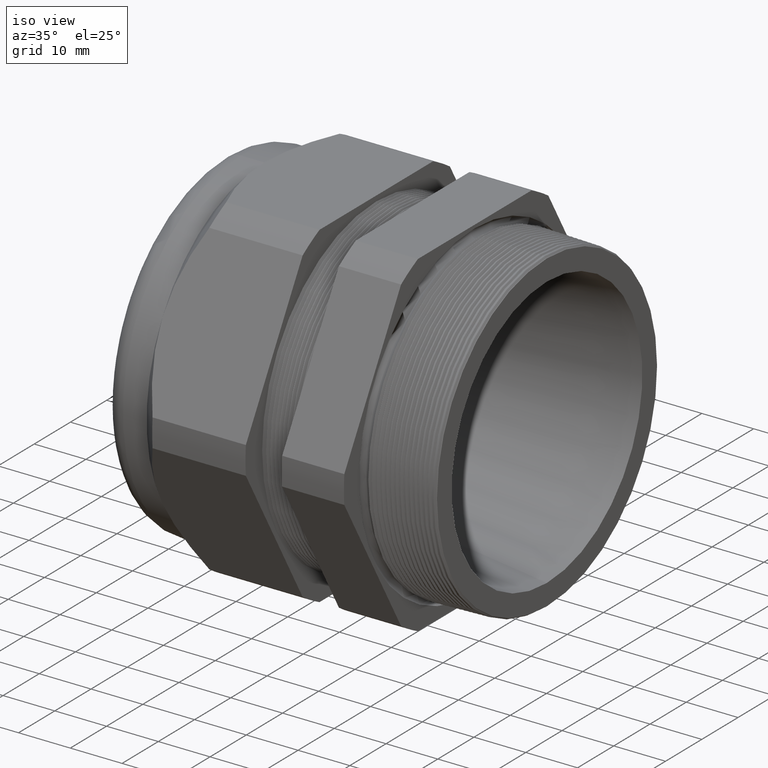
[diagram: clean part render]
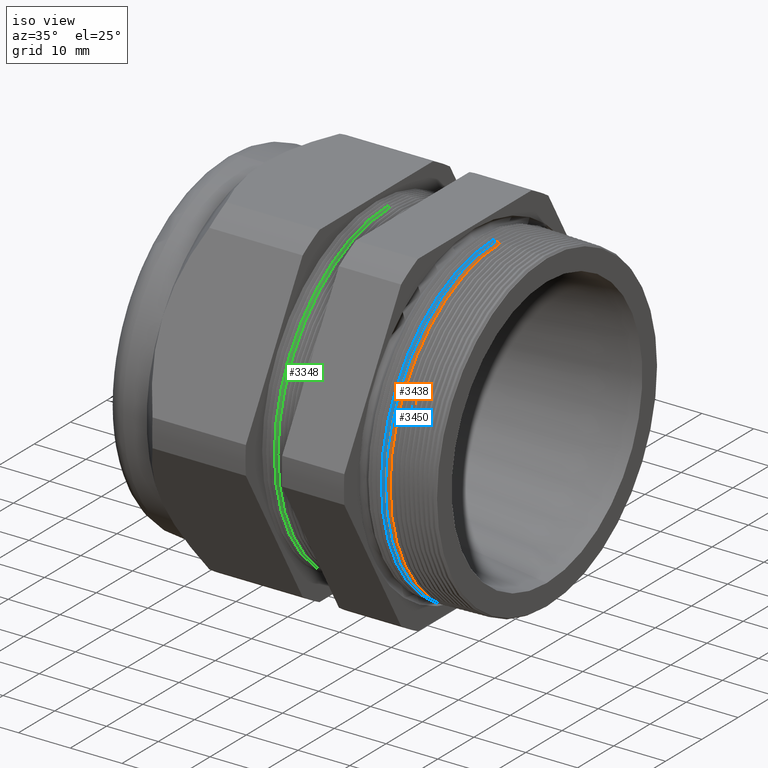
[diagram: same view with three faces highlighted in distinct colors, each labeled with its STEP entity id]
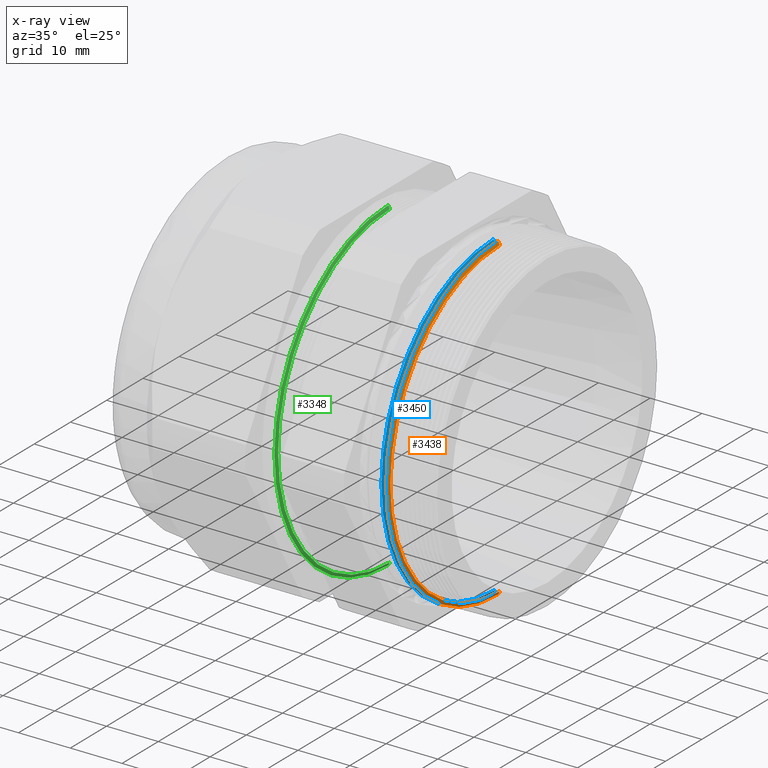
[diagram: x-ray of the same camera — body ghosted, the three highlighted faces saturated]
A machine part, iso view with three faces highlighted in distinct colors.
The next image is the same camera in x-ray (body ghosted, the three faces saturated) — at least one of them is partly hidden behind the body in this view.
Their STEP definitions:

[orange] entity #3438 — the highlighted conical surface has half-angle 61.5 deg.
#591 = CARTESIAN_POINT ( 'NONE',  ( -0.1184707356790753000, 1.473061546559352300E-016, -1.189948790814587800 ) ) ;
#661 = CARTESIAN_POINT ( 'NONE',  ( -0.1184707356790753000, 0.0000000000000000000, 1.189948790814587800 ) ) ;
#666 = CARTESIAN_POINT ( 'NONE',  ( -0.1324760000967738200, 0.0000000000000000000, 1.215743279070304900 ) ) ;
#667 = CARTESIAN_POINT ( 'NONE',  ( -0.1324760000967738200, 1.488937984899661700E-016, -1.215743279070304900 ) ) ;
#668 = DIRECTION ( 'NONE',  ( -0.4771587602596173400, 1.076240564057388800E-016, -0.8788171126619606100 ) ) ;
#669 = VECTOR ( 'NONE', #668, 39.37007874015748900 ) ;
#670 = CARTESIAN_POINT ( 'NONE',  ( -0.1349999999999999500, 1.494549044582627900E-016, -1.220391908608417600 ) ) ;
#671 = LINE ( 'NONE', #670, #669 ) ;
#693 = DIRECTION ( 'NONE',  ( -0.4771587602596173400, 0.0000000000000000000, 0.8788171126619606100 ) ) ;
#694 = VECTOR ( 'NONE', #693, 39.37007874015748900 ) ;
#695 = CARTESIAN_POINT ( 'NONE',  ( -0.1349999999999999500, 0.0000000000000000000, 1.220391908608417600 ) ) ;
#696 = LINE ( 'NONE', #695, #694 ) ;
#1014 = DIRECTION ( 'NONE',  ( 0.0000000000000000000, 0.0000000000000000000, -1.000000000000000000 ) ) ;
#1015 = DIRECTION ( 'NONE',  ( 1.000000000000000000, 0.0000000000000000000, 0.0000000000000000000 ) ) ;
#1016 = AXIS2_PLACEMENT_3D ( 'NONE', #1021, #1015, #1014 ) ;
#1017 = CIRCLE ( 'NONE', #1016, 1.189948790814587800 ) ;
#1018 = DIRECTION ( 'NONE',  ( 0.0000000000000000000, 0.0000000000000000000, 1.000000000000000000 ) ) ;
#1019 = DIRECTION ( 'NONE',  ( -1.000000000000000000, 0.0000000000000000000, 0.0000000000000000000 ) ) ;
#1020 = AXIS2_PLACEMENT_3D ( 'NONE', #1028, #1019, #1018 ) ;
#1021 = CARTESIAN_POINT ( 'NONE',  ( -0.1184707356790753000, 0.0000000000000000000, 0.0000000000000000000 ) ) ;
#1022 = CONICAL_SURFACE ( 'NONE', #1020, 1.220391908608417600, 1.073377489976502500 ) ;
#1023 = FACE_OUTER_BOUND ( 'NONE', #3439, .T. ) ;
#1028 = CARTESIAN_POINT ( 'NONE',  ( -0.1349999999999999500, 0.0000000000000000000, 0.0000000000000000000 ) ) ;
#2427 = EDGE_CURVE ( 'NONE', #3150, #3148, #4857, .T. ) ;
#3121 = VERTEX_POINT ( 'NONE', #591 ) ;
#3147 = EDGE_CURVE ( 'NONE', #3121, #3148, #671, .T. ) ;
#3148 = VERTEX_POINT ( 'NONE', #667 ) ;
#3150 = VERTEX_POINT ( 'NONE', #666 ) ;
#3154 = VERTEX_POINT ( 'NONE', #661 ) ;
#3178 = EDGE_CURVE ( 'NONE', #3154, #3150, #696, .T. ) ;
#3438 = ADVANCED_FACE ( 'NONE', ( #1023 ), #1022, .T. ) ;
#3439 = EDGE_LOOP ( 'NONE', ( #3440, #3441, #3443, #3495 ) ) ;
#3440 = ORIENTED_EDGE ( 'NONE', *, *, #3147, .F. ) ;
#3441 = ORIENTED_EDGE ( 'NONE', *, *, #3442, .F. ) ;
#3442 = EDGE_CURVE ( 'NONE', #3154, #3121, #1017, .T. ) ;
#3443 = ORIENTED_EDGE ( 'NONE', *, *, #3178, .T. ) ;
#3495 = ORIENTED_EDGE ( 'NONE', *, *, #2427, .T. ) ;
#4854 = DIRECTION ( 'NONE',  ( 0.0000000000000000000, 0.0000000000000000000, 1.000000000000000000 ) ) ;
#4855 = DIRECTION ( 'NONE',  ( 1.000000000000000000, 0.0000000000000000000, 0.0000000000000000000 ) ) ;
#4856 = AXIS2_PLACEMENT_3D ( 'NONE', #4863, #4855, #4854 ) ;
#4857 = CIRCLE ( 'NONE', #4856, 1.215743279070304900 ) ;
#4863 = CARTESIAN_POINT ( 'NONE',  ( -0.1324760000967738200, 0.0000000000000000000, 0.0000000000000000000 ) ) ;

[blue] entity #3450 — the highlighted conical surface has half-angle 61.5 deg.
#490 = CONICAL_SURFACE ( 'NONE', #1006, 1.220391908608417600, 1.073377489976502500 ) ;
#739 = CARTESIAN_POINT ( 'NONE',  ( -0.1534707356790753200, 0.0000000000000000000, 1.189948790814587800 ) ) ;
#740 = CARTESIAN_POINT ( 'NONE',  ( -0.1534707356790753200, 1.473630839487779600E-016, -1.189948790814587800 ) ) ;
#1006 = AXIS2_PLACEMENT_3D ( 'NONE', #5667, #5666, #4409 ) ;
#1011 = FACE_OUTER_BOUND ( 'NONE', #3451, .T. ) ;
#1064 = DIRECTION ( 'NONE',  ( 0.0000000000000000000, 0.0000000000000000000, -1.000000000000000000 ) ) ;
#1065 = DIRECTION ( 'NONE',  ( 1.000000000000000000, 0.0000000000000000000, 0.0000000000000000000 ) ) ;
#1066 = CARTESIAN_POINT ( 'NONE',  ( -0.1534707356790753200, 0.0000000000000000000, 0.0000000000000000000 ) ) ;
#1067 = AXIS2_PLACEMENT_3D ( 'NONE', #1066, #1065, #1064 ) ;
#1068 = CIRCLE ( 'NONE', #1067, 1.189948790814587800 ) ;
#1166 = CARTESIAN_POINT ( 'NONE',  ( -0.1699999999999999600, 0.0000000000000000000, 1.220391908608417600 ) ) ;
#1167 = LINE ( 'NONE', #1166, #1227 ) ;
#1212 = CARTESIAN_POINT ( 'NONE',  ( -0.1679808000774192500, 1.490059613472292900E-016, -1.216673004977927700 ) ) ;
#1213 = DIRECTION ( 'NONE',  ( -0.4771587602596173400, 1.076240564057388800E-016, -0.8788171126619606100 ) ) ;
#1214 = VECTOR ( 'NONE', #1213, 39.37007874015748900 ) ;
#1215 = CARTESIAN_POINT ( 'NONE',  ( -0.1699999999999999600, 1.494549044582627900E-016, -1.220391908608417600 ) ) ;
#1216 = LINE ( 'NONE', #1215, #1214 ) ;
#1226 = DIRECTION ( 'NONE',  ( -0.4771587602596173400, 0.0000000000000000000, 0.8788171126619606100 ) ) ;
#1227 = VECTOR ( 'NONE', #1226, 39.37007874015748900 ) ;
#1826 = VERTEX_POINT ( 'NONE', #3783 ) ;
#2476 = EDGE_CURVE ( 'NONE', #1826, #3579, #4957, .T. ) ;
#3187 = VERTEX_POINT ( 'NONE', #740 ) ;
#3189 = VERTEX_POINT ( 'NONE', #739 ) ;
#3450 = ADVANCED_FACE ( 'NONE', ( #1011 ), #490, .T. ) ;
#3451 = EDGE_LOOP ( 'NONE', ( #3452, #3453, #3455, #3456 ) ) ;
#3452 = ORIENTED_EDGE ( 'NONE', *, *, #3578, .F. ) ;
#3453 = ORIENTED_EDGE ( 'NONE', *, *, #3454, .F. ) ;
#3454 = EDGE_CURVE ( 'NONE', #3189, #3187, #1068, .T. ) ;
#3455 = ORIENTED_EDGE ( 'NONE', *, *, #3573, .T. ) ;
#3456 = ORIENTED_EDGE ( 'NONE', *, *, #2476, .T. ) ;
#3573 = EDGE_CURVE ( 'NONE', #3189, #1826, #1167, .T. ) ;
#3578 = EDGE_CURVE ( 'NONE', #3187, #3579, #1216, .T. ) ;
#3579 = VERTEX_POINT ( 'NONE', #1212 ) ;
#3783 = CARTESIAN_POINT ( 'NONE',  ( -0.1679808000774192500, 0.0000000000000000000, 1.216673004977927700 ) ) ;
#4409 = DIRECTION ( 'NONE',  ( 0.0000000000000000000, 0.0000000000000000000, 1.000000000000000000 ) ) ;
#4953 = DIRECTION ( 'NONE',  ( 0.0000000000000000000, 0.0000000000000000000, 1.000000000000000000 ) ) ;
#4954 = DIRECTION ( 'NONE',  ( 1.000000000000000000, 0.0000000000000000000, 0.0000000000000000000 ) ) ;
#4955 = CARTESIAN_POINT ( 'NONE',  ( -0.1679808000774192500, 0.0000000000000000000, 0.0000000000000000000 ) ) ;
#4956 = AXIS2_PLACEMENT_3D ( 'NONE', #4955, #4954, #4953 ) ;
#4957 = CIRCLE ( 'NONE', #4956, 1.216673004977927700 ) ;
#5666 = DIRECTION ( 'NONE',  ( -1.000000000000000000, 0.0000000000000000000, 0.0000000000000000000 ) ) ;
#5667 = CARTESIAN_POINT ( 'NONE',  ( -0.1699999999999999600, 0.0000000000000000000, 0.0000000000000000000 ) ) ;

[green] entity #3348 — the highlighted conical surface has half-angle 61.5 deg.
#851 = DIRECTION ( 'NONE',  ( 0.0000000000000000000, 0.0000000000000000000, -1.000000000000000000 ) ) ;
#852 = DIRECTION ( 'NONE',  ( 1.000000000000000000, 0.0000000000000000000, 0.0000000000000000000 ) ) ;
#853 = AXIS2_PLACEMENT_3D ( 'NONE', #859, #852, #851 ) ;
#854 = CIRCLE ( 'NONE', #853, 1.214630735171808400 ) ;
#859 = CARTESIAN_POINT ( 'NONE',  ( -0.9550284130658954800, 0.0000000000000000000, 0.0000000000000000000 ) ) ;
#887 = DIRECTION ( 'NONE',  ( 0.0000000000000000000, 0.0000000000000000000, 1.000000000000000000 ) ) ;
#888 = DIRECTION ( 'NONE',  ( -1.000000000000000000, 0.0000000000000000000, 0.0000000000000000000 ) ) ;
#889 = CARTESIAN_POINT ( 'NONE',  ( -0.9688027999999994100, 0.0000000000000000000, 0.0000000000000000000 ) ) ;
#890 = AXIS2_PLACEMENT_3D ( 'NONE', #889, #888, #887 ) ;
#892 = CONICAL_SURFACE ( 'NONE', #890, 1.240000000000000000, 1.073377489976500300 ) ;
#897 = FACE_OUTER_BOUND ( 'NONE', #3271, .T. ) ;
#2046 = VERTEX_POINT ( 'NONE', #4188 ) ;
#2087 = EDGE_CURVE ( 'NONE', #2097, #2112, #4304, .T. ) ;
#2097 = VERTEX_POINT ( 'NONE', #4282 ) ;
#2110 = EDGE_CURVE ( 'NONE', #2046, #2111, #4326, .T. ) ;
#2111 = VERTEX_POINT ( 'NONE', #4318 ) ;
#2112 = VERTEX_POINT ( 'NONE', #4317 ) ;
#2594 = EDGE_CURVE ( 'NONE', #2112, #2111, #5229, .T. ) ;
#3271 = EDGE_LOOP ( 'NONE', ( #3272, #3327, #3329, #3330 ) ) ;
#3272 = ORIENTED_EDGE ( 'NONE', *, *, #2110, .F. ) ;
#3327 = ORIENTED_EDGE ( 'NONE', *, *, #3328, .F. ) ;
#3328 = EDGE_CURVE ( 'NONE', #2097, #2046, #854, .T. ) ;
#3329 = ORIENTED_EDGE ( 'NONE', *, *, #2087, .T. ) ;
#3330 = ORIENTED_EDGE ( 'NONE', *, *, #2594, .T. ) ;
#3348 = ADVANCED_FACE ( 'NONE', ( #897 ), #892, .T. ) ;
#4188 = CARTESIAN_POINT ( 'NONE',  ( -0.9550284130658954800, 1.501563940356764800E-016, -1.214630735171808400 ) ) ;
#4282 = CARTESIAN_POINT ( 'NONE',  ( -0.9550284130658954800, 0.0000000000000000000, 1.214630735171808400 ) ) ;
#4301 = DIRECTION ( 'NONE',  ( -0.4771587602596192300, 0.0000000000000000000, 0.8788171126619593900 ) ) ;
#4302 = VECTOR ( 'NONE', #4301, 39.37007874015748900 ) ;
#4303 = CARTESIAN_POINT ( 'NONE',  ( -0.9688027999999994100, 0.0000000000000000000, 1.240000000000000000 ) ) ;
#4304 = LINE ( 'NONE', #4303, #4302 ) ;
#4317 = CARTESIAN_POINT ( 'NONE',  ( -0.9675047429069115700, 0.0000000000000000000, 1.237609276237541900 ) ) ;
#4318 = CARTESIAN_POINT ( 'NONE',  ( -0.9675047429069115700, 1.515688563350019800E-016, -1.237609276237541900 ) ) ;
#4319 = DIRECTION ( 'NONE',  ( -0.4771587602596192300, 1.076240564057387400E-016, -0.8788171126619593900 ) ) ;
#4320 = VECTOR ( 'NONE', #4319, 39.37007874015748900 ) ;
#4321 = CARTESIAN_POINT ( 'NONE',  ( -0.9688027999999994100, 1.518562030942717800E-016, -1.240000000000000000 ) ) ;
#4326 = LINE ( 'NONE', #4321, #4320 ) ;
#5225 = DIRECTION ( 'NONE',  ( 0.0000000000000000000, 0.0000000000000000000, 1.000000000000000000 ) ) ;
#5226 = DIRECTION ( 'NONE',  ( 1.000000000000000000, 0.0000000000000000000, 0.0000000000000000000 ) ) ;
#5227 = CARTESIAN_POINT ( 'NONE',  ( -0.9675047429069115700, 0.0000000000000000000, 0.0000000000000000000 ) ) ;
#5228 = AXIS2_PLACEMENT_3D ( 'NONE', #5227, #5226, #5225 ) ;
#5229 = CIRCLE ( 'NONE', #5228, 1.237609276237541900 ) ;